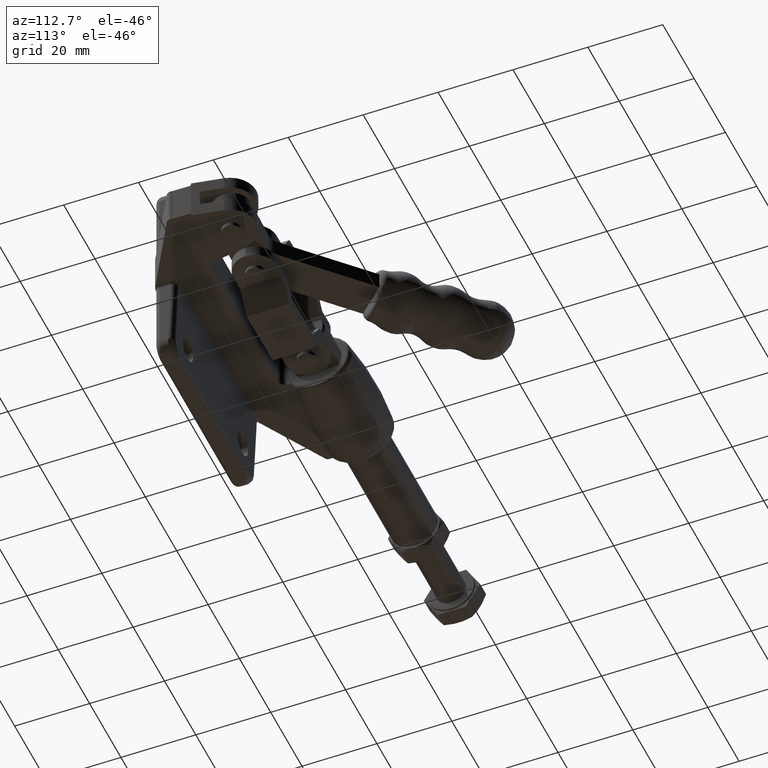
[diagram: clean part render]
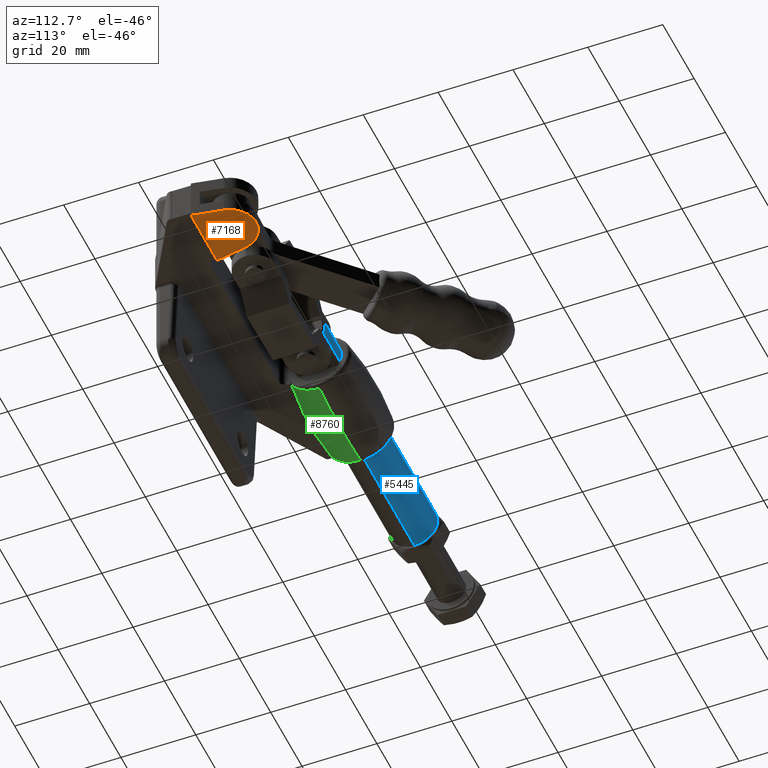
[diagram: same view with three faces highlighted in distinct colors, each labeled with its STEP entity id]
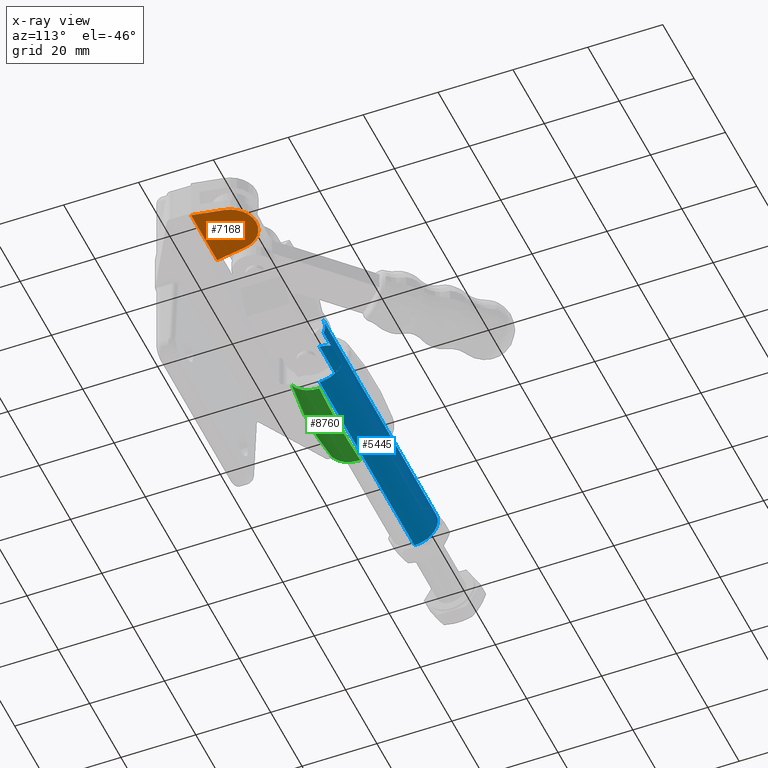
[diagram: x-ray of the same camera — body ghosted, the three highlighted faces saturated]
A machine part, auxiliary view with three faces highlighted in distinct colors.
The next image is the same camera in x-ray (body ghosted, the three faces saturated) — at least one of them is partly hidden behind the body in this view.
Their STEP definitions:

[orange] entity #7168 — the highlighted planar face has unit normal (0, 0, 1).
#462 = LINE ( 'NONE', #8714, #8182 ) ;
#469 = EDGE_CURVE ( 'NONE', #8777, #1668, #4662, .T. ) ;
#525 = DIRECTION ( 'NONE',  ( 0.0000000000000000000, 0.0000000000000000000, 1.000000000000000000 ) ) ;
#554 = VECTOR ( 'NONE', #4818, 1000.000000000000100 ) ;
#821 = LINE ( 'NONE', #6037, #8285 ) ;
#1316 = PLANE ( 'NONE',  #8464 ) ;
#1318 = ORIENTED_EDGE ( 'NONE', *, *, #4305, .T. ) ;
#1573 = DIRECTION ( 'NONE',  ( -0.1758338801075117200, 0.9844198528099364900, 0.0000000000000000000 ) ) ;
#1668 = VERTEX_POINT ( 'NONE', #6488 ) ;
#1714 = CARTESIAN_POINT ( 'NONE',  ( -6.600000000000010300, 24.94000000000000500, -5.650000000000000400 ) ) ;
#1878 = EDGE_LOOP ( 'NONE', ( #1318, #4760 ) ) ;
#2313 = DIRECTION ( 'NONE',  ( 1.000000000000000000, 0.0000000000000000000, 0.0000000000000000000 ) ) ;
#2464 = DIRECTION ( 'NONE',  ( 1.000000000000000000, 0.0000000000000000000, 0.0000000000000000000 ) ) ;
#2897 = EDGE_CURVE ( 'NONE', #8060, #8062, #462, .T. ) ;
#3009 = CARTESIAN_POINT ( 'NONE',  ( -9.100000000000010300, 25.39999999999999900, -5.650000000000005700 ) ) ;
#3099 = DIRECTION ( 'NONE',  ( 1.000000000000000000, 0.0000000000000000000, 0.0000000000000000000 ) ) ;
#3371 = DIRECTION ( 'NONE',  ( 0.0000000000000000000, 0.0000000000000000000, 1.000000000000000000 ) ) ;
#3518 = DIRECTION ( 'NONE',  ( 1.000000000000000000, -0.0000000000000000000, -0.0000000000000000000 ) ) ;
#3839 = CARTESIAN_POINT ( 'NONE',  ( -6.600000000000010300, 25.39999999999999900, -5.650000000000005700 ) ) ;
#4013 = AXIS2_PLACEMENT_3D ( 'NONE', #3839, #4993, #3099 ) ;
#4107 = AXIS2_PLACEMENT_3D ( 'NONE', #1714, #6953, #2464 ) ;
#4234 = EDGE_CURVE ( 'NONE', #8062, #4266, #821, .T. ) ;
#4266 = VERTEX_POINT ( 'NONE', #9021 ) ;
#4305 = EDGE_CURVE ( 'NONE', #1668, #8777, #9556, .T. ) ;
#4367 = VERTEX_POINT ( 'NONE', #9403 ) ;
#4479 = EDGE_LOOP ( 'NONE', ( #8860, #6153, #6906, #5700 ) ) ;
#4662 = CIRCLE ( 'NONE', #4013, 2.500000000000000400 ) ;
#4760 = ORIENTED_EDGE ( 'NONE', *, *, #469, .T. ) ;
#4818 = DIRECTION ( 'NONE',  ( -0.1758338801075334200, -0.9844198528099326100, 0.0000000000000000000 ) ) ;
#4889 = EDGE_CURVE ( 'NONE', #4367, #8060, #6543, .T. ) ;
#4993 = DIRECTION ( 'NONE',  ( 0.0000000000000000000, 0.0000000000000000000, 1.000000000000000000 ) ) ;
#5582 = CARTESIAN_POINT ( 'NONE',  ( -14.95038739261734200, 18.00000000000004600, -5.650000000000000400 ) ) ;
#5700 = ORIENTED_EDGE ( 'NONE', *, *, #4234, .F. ) ;
#6037 = CARTESIAN_POINT ( 'NONE',  ( 0.2909389696695461900, 26.17083716075258700, -5.650000000000000400 ) ) ;
#6153 = ORIENTED_EDGE ( 'NONE', *, *, #4889, .F. ) ;
#6488 = CARTESIAN_POINT ( 'NONE',  ( -4.100000000000010300, 25.39999999999999900, -5.650000000000005700 ) ) ;
#6543 = LINE ( 'NONE', #8501, #554 ) ;
#6906 = ORIENTED_EDGE ( 'NONE', *, *, #7441, .F. ) ;
#6953 = DIRECTION ( 'NONE',  ( 0.0000000000000000000, 0.0000000000000000000, 1.000000000000000000 ) ) ;
#7168 = ADVANCED_FACE ( 'NONE', ( #7216, #9170 ), #1316, .F. ) ;
#7216 = FACE_BOUND ( 'NONE', #1878, .T. ) ;
#7441 = EDGE_CURVE ( 'NONE', #4266, #4367, #8933, .T. ) ;
#7802 = CARTESIAN_POINT ( 'NONE',  ( 1.750387392617139200, 18.00000000000004600, -5.650000000000000400 ) ) ;
#7827 = CARTESIAN_POINT ( 'NONE',  ( -6.600000000000010300, 25.39999999999999900, -5.650000000000005700 ) ) ;
#8060 = VERTEX_POINT ( 'NONE', #5582 ) ;
#8062 = VERTEX_POINT ( 'NONE', #7802 ) ;
#8118 = AXIS2_PLACEMENT_3D ( 'NONE', #7827, #3371, #8571 ) ;
#8182 = VECTOR ( 'NONE', #3518, 1000.000000000000000 ) ;
#8285 = VECTOR ( 'NONE', #1573, 1000.000000000000200 ) ;
#8464 = AXIS2_PLACEMENT_3D ( 'NONE', #8739, #525, #2313 ) ;
#8501 = CARTESIAN_POINT ( 'NONE',  ( -14.50875775776120600, 20.47249835967741300, -5.650000000000000400 ) ) ;
#8571 = DIRECTION ( 'NONE',  ( 1.000000000000000000, 0.0000000000000000000, 0.0000000000000000000 ) ) ;
#8714 = CARTESIAN_POINT ( 'NONE',  ( 1.750387392617139200, 18.00000000000004600, -5.650000000000000400 ) ) ;
#8739 = CARTESIAN_POINT ( 'NONE',  ( -6.600000000000010300, 24.94000000000000500, -5.650000000000000400 ) ) ;
#8777 = VERTEX_POINT ( 'NONE', #3009 ) ;
#8860 = ORIENTED_EDGE ( 'NONE', *, *, #2897, .F. ) ;
#8933 = CIRCLE ( 'NONE', #4107, 7.000000000000000900 ) ;
#9021 = CARTESIAN_POINT ( 'NONE',  ( 0.2909389696695461900, 26.17083716075258700, -5.650000000000000400 ) ) ;
#9170 = FACE_OUTER_BOUND ( 'NONE', #4479, .T. ) ;
#9403 = CARTESIAN_POINT ( 'NONE',  ( -13.49093896966953900, 26.17083716075273300, -5.650000000000000400 ) ) ;
#9556 = CIRCLE ( 'NONE', #8118, 2.500000000000000400 ) ;

[blue] entity #5445 — the highlighted cylindrical surface (edge-blend (fillet) strip) has radius 6.29 mm, axis along (1, 0, 0).
#253 = DIRECTION ( 'NONE',  ( 0.0000000000000000000, -1.654744174222709500E-015, 1.000000000000000000 ) ) ;
#477 = AXIS2_PLACEMENT_3D ( 'NONE', #2642, #7857, #3403 ) ;
#793 = CARTESIAN_POINT ( 'NONE',  ( -123.7434796880213700, 31.29271584246186300, 2.199999999999994000 ) ) ;
#967 = CARTESIAN_POINT ( 'NONE',  ( -62.64347968802136500, 31.29271584246184900, 2.199999999999994000 ) ) ;
#986 = DIRECTION ( 'NONE',  ( 1.000000000000000000, 0.0000000000000000000, 0.0000000000000000000 ) ) ;
#1140 = CYLINDRICAL_SURFACE ( 'NONE', #5545, 6.290000000000000000 ) ;
#1159 = LINE ( 'NONE', #7478, #7119 ) ;
#1387 = CARTESIAN_POINT ( 'NONE',  ( -123.7434796880213700, 25.40000000000008700, 6.289999999999997400 ) ) ;
#1403 = CARTESIAN_POINT ( 'NONE',  ( -123.2434796880213700, 25.40000000000008700, -6.290000000000003600 ) ) ;
#1837 = CARTESIAN_POINT ( 'NONE',  ( -123.2434796880213700, 25.40000000000008700, 6.289999999999997400 ) ) ;
#1982 = CIRCLE ( 'NONE', #9227, 6.290000000000000000 ) ;
#2094 = ORIENTED_EDGE ( 'NONE', *, *, #5845, .T. ) ;
#2101 = DIRECTION ( 'NONE',  ( 1.000000000000000000, 0.0000000000000000000, 0.0000000000000000000 ) ) ;
#2465 = VERTEX_POINT ( 'NONE', #1403 ) ;
#2642 = CARTESIAN_POINT ( 'NONE',  ( -62.64347968802136500, 25.40000000000008700, -3.719593420145837800E-015 ) ) ;
#2646 = ORIENTED_EDGE ( 'NONE', *, *, #7861, .F. ) ;
#3005 = EDGE_CURVE ( 'NONE', #7451, #3290, #1982, .T. ) ;
#3047 = CARTESIAN_POINT ( 'NONE',  ( -62.64347968802136500, 31.29271584246184900, -2.200000000000002000 ) ) ;
#3119 = VERTEX_POINT ( 'NONE', #1837 ) ;
#3152 = AXIS2_PLACEMENT_3D ( 'NONE', #8374, #3922, #9123 ) ;
#3290 = VERTEX_POINT ( 'NONE', #6738 ) ;
#3403 = DIRECTION ( 'NONE',  ( 0.0000000000000000000, 1.654744174222709500E-015, 1.000000000000000000 ) ) ;
#3477 = LINE ( 'NONE', #1387, #4828 ) ;
#3741 = DIRECTION ( 'NONE',  ( -1.000000000000000000, -0.0000000000000000000, -0.0000000000000000000 ) ) ;
#3750 = CIRCLE ( 'NONE', #3152, 6.290000000000000000 ) ;
#3754 = DIRECTION ( 'NONE',  ( 1.000000000000000000, 0.0000000000000000000, 0.0000000000000000000 ) ) ;
#3922 = DIRECTION ( 'NONE',  ( -1.000000000000000000, 0.0000000000000000000, 0.0000000000000000000 ) ) ;
#3958 = CARTESIAN_POINT ( 'NONE',  ( -123.7434796880213700, 25.40000000000008700, -3.719593420145837800E-015 ) ) ;
#3965 = AXIS2_PLACEMENT_3D ( 'NONE', #4228, #9419, #4996 ) ;
#4228 = CARTESIAN_POINT ( 'NONE',  ( -123.2434796880213700, 25.40000000000008700, -3.719593420145837800E-015 ) ) ;
#4317 = EDGE_LOOP ( 'NONE', ( #8898, #9113, #6007, #2646, #2094, #8015, #9280, #6277 ) ) ;
#4582 = VECTOR ( 'NONE', #3741, 1000.000000000000000 ) ;
#4593 = EDGE_CURVE ( 'NONE', #2465, #6336, #1159, .T. ) ;
#4733 = CARTESIAN_POINT ( 'NONE',  ( -51.14347968802136500, 31.29271584246186300, -2.200000000000002000 ) ) ;
#4779 = DIRECTION ( 'NONE',  ( 1.000000000000000000, 0.0000000000000000000, 0.0000000000000000000 ) ) ;
#4816 = LINE ( 'NONE', #793, #4582 ) ;
#4828 = VECTOR ( 'NONE', #5134, 1000.000000000000000 ) ;
#4996 = DIRECTION ( 'NONE',  ( 0.0000000000000000000, 0.0000000000000000000, -1.000000000000000000 ) ) ;
#5010 = LINE ( 'NONE', #6608, #8945 ) ;
#5134 = DIRECTION ( 'NONE',  ( 1.000000000000000000, 0.0000000000000000000, 0.0000000000000000000 ) ) ;
#5445 = ADVANCED_FACE ( 'NONE', ( #9066 ), #1140, .T. ) ;
#5545 = AXIS2_PLACEMENT_3D ( 'NONE', #3958, #986, #6241 ) ;
#5644 = EDGE_CURVE ( 'NONE', #3119, #3290, #3477, .T. ) ;
#5845 = EDGE_CURVE ( 'NONE', #7029, #5905, #3750, .T. ) ;
#5905 = VERTEX_POINT ( 'NONE', #4733 ) ;
#6007 = ORIENTED_EDGE ( 'NONE', *, *, #3005, .F. ) ;
#6241 = DIRECTION ( 'NONE',  ( 0.0000000000000000000, 0.0000000000000000000, -1.000000000000000000 ) ) ;
#6277 = ORIENTED_EDGE ( 'NONE', *, *, #4593, .F. ) ;
#6336 = VERTEX_POINT ( 'NONE', #7576 ) ;
#6608 = CARTESIAN_POINT ( 'NONE',  ( -123.7434796880213700, 31.29271584246186300, -2.200000000000002000 ) ) ;
#6738 = CARTESIAN_POINT ( 'NONE',  ( -62.64347968802136500, 25.40000000000008700, 6.289999999999997400 ) ) ;
#6784 = CIRCLE ( 'NONE', #477, 6.290000000000000000 ) ;
#7029 = VERTEX_POINT ( 'NONE', #8608 ) ;
#7086 = EDGE_CURVE ( 'NONE', #2465, #3119, #9656, .T. ) ;
#7119 = VECTOR ( 'NONE', #3754, 1000.000000000000000 ) ;
#7182 = EDGE_CURVE ( 'NONE', #8336, #5905, #5010, .T. ) ;
#7451 = VERTEX_POINT ( 'NONE', #967 ) ;
#7478 = CARTESIAN_POINT ( 'NONE',  ( -123.7434796880213700, 25.40000000000008700, -6.290000000000003600 ) ) ;
#7576 = CARTESIAN_POINT ( 'NONE',  ( -62.64347968802136500, 25.40000000000008700, -6.290000000000003600 ) ) ;
#7857 = DIRECTION ( 'NONE',  ( 1.000000000000000000, -0.0000000000000000000, -0.0000000000000000000 ) ) ;
#7861 = EDGE_CURVE ( 'NONE', #7029, #7451, #4816, .T. ) ;
#8015 = ORIENTED_EDGE ( 'NONE', *, *, #7182, .F. ) ;
#8336 = VERTEX_POINT ( 'NONE', #3047 ) ;
#8374 = CARTESIAN_POINT ( 'NONE',  ( -51.14347968802136500, 25.40000000000008700, -3.719593420145837800E-015 ) ) ;
#8503 = EDGE_CURVE ( 'NONE', #6336, #8336, #6784, .T. ) ;
#8608 = CARTESIAN_POINT ( 'NONE',  ( -51.14347968802136500, 31.29271584246186300, 2.199999999999994000 ) ) ;
#8898 = ORIENTED_EDGE ( 'NONE', *, *, #7086, .T. ) ;
#8945 = VECTOR ( 'NONE', #2101, 1000.000000000000000 ) ;
#9066 = FACE_OUTER_BOUND ( 'NONE', #4317, .T. ) ;
#9113 = ORIENTED_EDGE ( 'NONE', *, *, #5644, .T. ) ;
#9123 = DIRECTION ( 'NONE',  ( 0.0000000000000000000, 5.515813914075698100E-015, -1.000000000000000000 ) ) ;
#9204 = CARTESIAN_POINT ( 'NONE',  ( -62.64347968802136500, 25.40000000000008700, -3.719593420145837800E-015 ) ) ;
#9227 = AXIS2_PLACEMENT_3D ( 'NONE', #9204, #4779, #253 ) ;
#9280 = ORIENTED_EDGE ( 'NONE', *, *, #8503, .F. ) ;
#9419 = DIRECTION ( 'NONE',  ( 1.000000000000000000, -0.0000000000000000000, -0.0000000000000000000 ) ) ;
#9656 = CIRCLE ( 'NONE', #3965, 6.290000000000000000 ) ;

[green] entity #8760 — the highlighted toroidal blend (fillet) surface has major radius 88.7704 mm and minor (blend) radius 98.5 mm.
#74 = CARTESIAN_POINT ( 'NONE',  ( -88.67982188263900400, 17.81675682464397100, -4.897614136720341600 ) ) ;
#245 = ORIENTED_EDGE ( 'NONE', *, *, #3137, .F. ) ;
#384 = CARTESIAN_POINT ( 'NONE',  ( -62.45293712422170500, 18.00000000000005700, -4.495697028301012000 ) ) ;
#455 = VERTEX_POINT ( 'NONE', #7073 ) ;
#467 = EDGE_CURVE ( 'NONE', #2386, #455, #2892, .T. ) ;
#494 = AXIS2_PLACEMENT_3D ( 'NONE', #7623, #3162, #8354 ) ;
#592 = CARTESIAN_POINT ( 'NONE',  ( -71.16828659508975400, 17.18435598253655200, -4.900000000000211700 ) ) ;
#897 = B_SPLINE_CURVE_WITH_KNOTS ( 'NONE', 3,
 ( #2059, #2834, #8030, #3577, #8779, #4326, #9520, #5101, #592, #5850, #1352, #6599 ),
 .UNSPECIFIED., .F., .F.,
 ( 4, 2, 2, 2, 2, 4 ),
 ( 0.1182014803246617000, 0.1243891747633435600, 0.1305768692020254400, 0.1336707164213663800, 0.1367645636407073300, 0.1429522580793892700 ),
 .UNSPECIFIED. ) ;
#950 = VERTEX_POINT ( 'NONE', #4877 ) ;
#1128 = CARTESIAN_POINT ( 'NONE',  ( -63.73640595197908700, 18.00000000000000400, -4.838228532031215500 ) ) ;
#1352 = CARTESIAN_POINT ( 'NONE',  ( -66.03111433344217600, 17.67604429060515500, -4.900000000000211700 ) ) ;
#1432 = EDGE_LOOP ( 'NONE', ( #5651, #7896, #245, #6761, #5307, #9381 ) ) ;
#1896 = DIRECTION ( 'NONE',  ( -1.000000000000000000, 0.0000000000000000000, 0.0000000000000000000 ) ) ;
#1997 = AXIS2_PLACEMENT_3D ( 'NONE', #4226, #5710, #8295 ) ;
#2059 = CARTESIAN_POINT ( 'NONE',  ( -88.60000000000020700, 17.80694003602909000, -4.900000000000210000 ) ) ;
#2337 = CARTESIAN_POINT ( 'NONE',  ( -88.71960293708666300, 17.81936757587391500, -4.892821805481974100 ) ) ;
#2386 = VERTEX_POINT ( 'NONE', #5045 ) ;
#2628 = CARTESIAN_POINT ( 'NONE',  ( -63.99365595569740600, 18.00000000000000400, -4.900000000000247300 ) ) ;
#2834 = CARTESIAN_POINT ( 'NONE',  ( -86.57553061342122200, 17.51967047469176500, -4.900000000000210900 ) ) ;
#2892 = CIRCLE ( 'NONE', #1997, 8.658596408787921900 ) ;
#2893 = AXIS2_PLACEMENT_3D ( 'NONE', #6400, #1896, #7145 ) ;
#3137 = EDGE_CURVE ( 'NONE', #950, #455, #3160, .T. ) ;
#3160 = B_SPLINE_CURVE_WITH_KNOTS ( 'NONE', 3,
 ( #2628, #1128, #4134, #9322, #4905, #384 ),
 .UNSPECIFIED., .F., .F.,
 ( 4, 2, 4 ),
 ( 0.08373361729082676200, 0.08453787575268494100, 0.08534213421454311900 ),
 .UNSPECIFIED. ) ;
#3162 = DIRECTION ( 'NONE',  ( 0.0000000000000000000, 1.000000000000000000, 1.224646799147353200E-016 ) ) ;
#3304 = CARTESIAN_POINT ( 'NONE',  ( -88.60000000000020700, 17.80694003602909000, -4.900000000000210000 ) ) ;
#3558 = EDGE_CURVE ( 'NONE', #4886, #950, #897, .T. ) ;
#3577 = CARTESIAN_POINT ( 'NONE',  ( -80.43832205780495300, 17.04143090346038000, -4.900000000000210900 ) ) ;
#3689 = CARTESIAN_POINT ( 'NONE',  ( -76.93863038838921400, 25.40000000000009100, 0.0000000000000000000 ) ) ;
#3812 = CARTESIAN_POINT ( 'NONE',  ( -88.60000000000020700, 17.80694003602909000, -4.900000000000210000 ) ) ;
#4134 = CARTESIAN_POINT ( 'NONE',  ( -63.47937302331477100, 18.00000000000000700, -4.773828757923351600 ) ) ;
#4226 = CARTESIAN_POINT ( 'NONE',  ( -62.45293712422170500, 25.40000000000009100, 0.0000000000000000000 ) ) ;
#4326 = CARTESIAN_POINT ( 'NONE',  ( -75.31147562272474300, 17.00374416475342100, -4.900000000000210900 ) ) ;
#4686 = CARTESIAN_POINT ( 'NONE',  ( -88.71960293708666300, 25.40000000000009100, -9.022510358537410000 ) ) ;
#4843 = AXIS2_PLACEMENT_3D ( 'NONE', #3689, #8917, #5993 ) ;
#4877 = CARTESIAN_POINT ( 'NONE',  ( -63.99365595569740600, 18.00000000000000400, -4.900000000000247300 ) ) ;
#4886 = VERTEX_POINT ( 'NONE', #3304 ) ;
#4905 = CARTESIAN_POINT ( 'NONE',  ( -62.70922758167801400, 18.00000000000000400, -4.569086511720375800 ) ) ;
#4956 = EDGE_CURVE ( 'NONE', #8888, #5297, #7347, .T. ) ;
#5045 = CARTESIAN_POINT ( 'NONE',  ( -62.45293712422170500, 25.40000000000009100, -8.658596408788014300 ) ) ;
#5101 = CARTESIAN_POINT ( 'NONE',  ( -72.20040565468070800, 17.12026533850106000, -4.900000000000211700 ) ) ;
#5297 = VERTEX_POINT ( 'NONE', #2337 ) ;
#5307 = ORIENTED_EDGE ( 'NONE', *, *, #7312, .T. ) ;
#5341 = CARTESIAN_POINT ( 'NONE',  ( -88.71960293708666300, 17.81936757587391500, -4.892821805481974100 ) ) ;
#5353 = EDGE_CURVE ( 'NONE', #2386, #8888, #5838, .T. ) ;
#5492 = TOROIDAL_SURFACE ( 'NONE', #4843, -88.77042745297970300, 98.50000000000221700 ) ;
#5651 = ORIENTED_EDGE ( 'NONE', *, *, #5353, .F. ) ;
#5710 = DIRECTION ( 'NONE',  ( -1.000000000000000000, 0.0000000000000000000, 0.0000000000000000000 ) ) ;
#5838 = CIRCLE ( 'NONE', #494, 98.50000000000221700 ) ;
#5850 = CARTESIAN_POINT ( 'NONE',  ( -68.07976029808826000, 17.43387590379360900, -4.900000000000211700 ) ) ;
#5920 = B_SPLINE_CURVE_WITH_KNOTS ( 'NONE', 3,
 ( #3812, #8275, #74, #5341 ),
 .UNSPECIFIED., .F., .F.,
 ( 4, 4 ),
 ( 0.0000000000000000000, 0.0001204609180723900500 ),
 .UNSPECIFIED. ) ;
#5993 = DIRECTION ( 'NONE',  ( 0.0000000000000000000, 0.0000000000000000000, 1.000000000000000000 ) ) ;
#6400 = CARTESIAN_POINT ( 'NONE',  ( -88.71960293708666300, 25.40000000000009100, 0.0000000000000000000 ) ) ;
#6599 = CARTESIAN_POINT ( 'NONE',  ( -63.99365595569740600, 18.00000000000000400, -4.900000000000247300 ) ) ;
#6761 = ORIENTED_EDGE ( 'NONE', *, *, #3558, .F. ) ;
#7073 = CARTESIAN_POINT ( 'NONE',  ( -62.45293712422170500, 18.00000000000005700, -4.495697028301012000 ) ) ;
#7145 = DIRECTION ( 'NONE',  ( 0.0000000000000000000, 0.0000000000000000000, 1.000000000000000000 ) ) ;
#7312 = EDGE_CURVE ( 'NONE', #4886, #5297, #5920, .T. ) ;
#7347 = CIRCLE ( 'NONE', #2893, 9.022510358537305200 ) ;
#7457 = FACE_OUTER_BOUND ( 'NONE', #1432, .T. ) ;
#7623 = CARTESIAN_POINT ( 'NONE',  ( -76.93863038838921400, 25.40000000000008000, 88.77042745297970300 ) ) ;
#7896 = ORIENTED_EDGE ( 'NONE', *, *, #467, .T. ) ;
#8030 = CARTESIAN_POINT ( 'NONE',  ( -84.52967246631834500, 17.30997480220035500, -4.900000000000210000 ) ) ;
#8275 = CARTESIAN_POINT ( 'NONE',  ( -88.63975539190458600, 17.81258127420679600, -4.900000000000210000 ) ) ;
#8295 = DIRECTION ( 'NONE',  ( 0.0000000000000000000, 0.0000000000000000000, 1.000000000000000000 ) ) ;
#8354 = DIRECTION ( 'NONE',  ( 0.0000000000000000000, -1.056684350848792700E-016, 1.000000000000000000 ) ) ;
#8760 = ADVANCED_FACE ( 'NONE', ( #7457 ), #5492, .T. ) ;
#8779 = CARTESIAN_POINT ( 'NONE',  ( -78.38946776437771300, 16.98199818484011900, -4.900000000000210000 ) ) ;
#8888 = VERTEX_POINT ( 'NONE', #4686 ) ;
#8917 = DIRECTION ( 'NONE',  ( -1.000000000000000000, 0.0000000000000000000, 0.0000000000000000000 ) ) ;
#9322 = CARTESIAN_POINT ( 'NONE',  ( -62.96578391137419600, 18.00000000000000000, -4.639256861354532200 ) ) ;
#9381 = ORIENTED_EDGE ( 'NONE', *, *, #4956, .F. ) ;
#9520 = CARTESIAN_POINT ( 'NONE',  ( -74.26981870789195700, 17.02991562238020200, -4.900000000000210900 ) ) ;